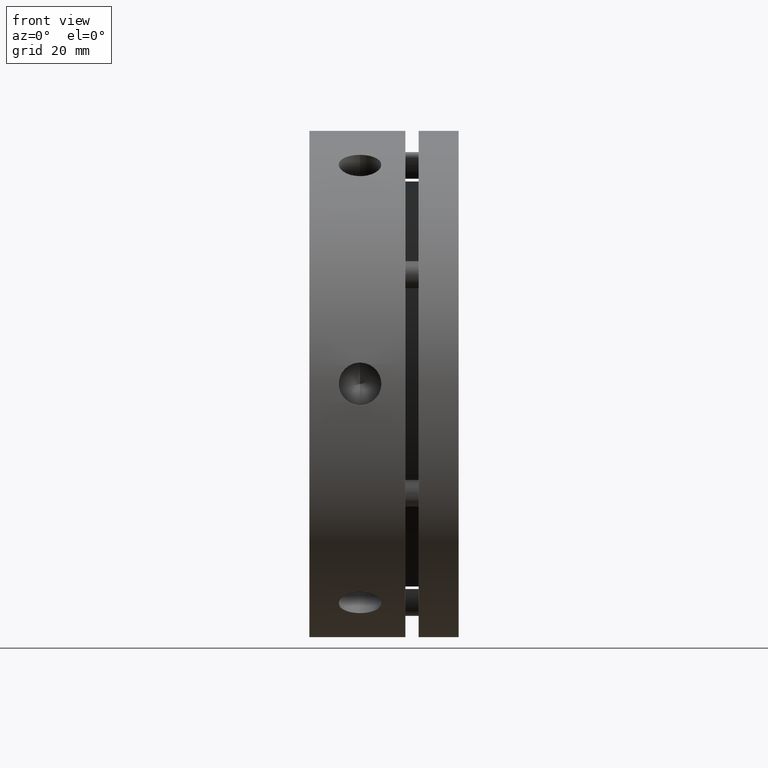
[diagram: clean part render]
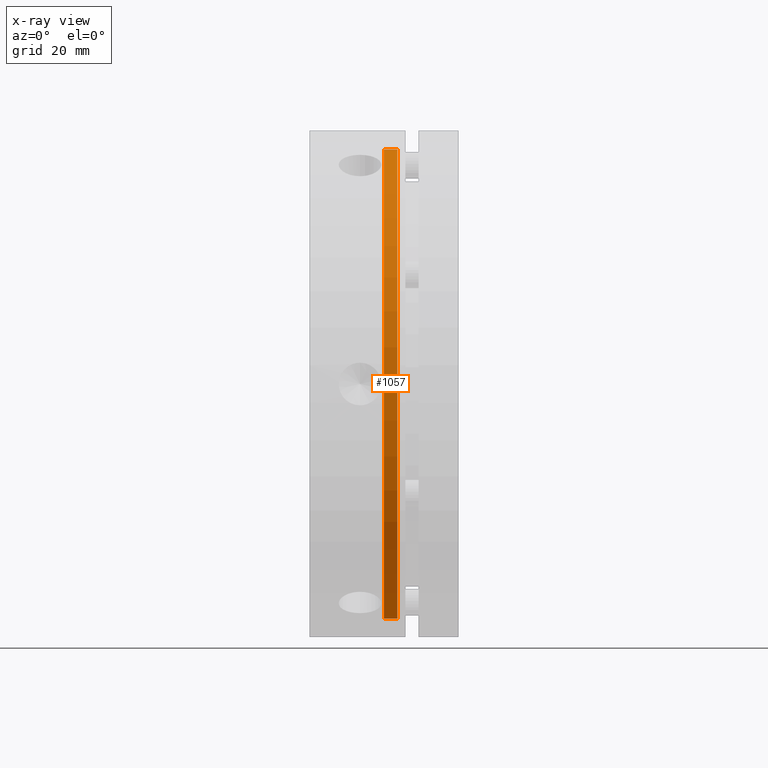
[diagram: x-ray — body ghosted, one internal face saturated and labeled with its STEP entity id]
A machine part, front view, then the same camera in x-ray: the body is ghosted and one INTERNAL B-rep face — a face not visible from any outside direction — is saturated and labeled: STEP entity #1057.
In plain terms, the highlighted cylindrical surface (partial cylindrical patch) has radius 44 mm, axis along (-1, 0, 0).
Its self-contained STEP definition (entity closure, byte-faithful):
#17 = EDGE_LOOP ( 'NONE', ( #1321, #1320, #1319, #1318 ) ) ;
#94 = VERTEX_POINT ( 'NONE', #1419 ) ;
#105 = VERTEX_POINT ( 'NONE', #1430 ) ;
#160 = VERTEX_POINT ( 'NONE', #1470 ) ;
#233 = VERTEX_POINT ( 'NONE', #1532 ) ;
#355 = AXIS2_PLACEMENT_3D ( 'NONE', #2145, #2146, #2147 ) ;
#522 = EDGE_CURVE ( 'NONE', #233, #94, #2979, .T. ) ;
#551 = EDGE_CURVE ( 'NONE', #160, #105, #3025, .T. ) ;
#583 = EDGE_CURVE ( 'NONE', #160, #94, #3070, .T. ) ;
#585 = EDGE_CURVE ( 'NONE', #105, #233, #3077, .T. ) ;
#814 = AXIS2_PLACEMENT_3D ( 'NONE', #2070, #2071, #2072 ) ;
#921 = AXIS2_PLACEMENT_3D ( 'NONE', #2596, #2594, #2592 ) ;
#1057 = ADVANCED_FACE ( 'NONE', ( #1697 ), #1706, .F. ) ;
#1318 = ORIENTED_EDGE ( 'NONE', *, *, #583, .F. ) ;
#1319 = ORIENTED_EDGE ( 'NONE', *, *, #522, .T. ) ;
#1320 = ORIENTED_EDGE ( 'NONE', *, *, #585, .T. ) ;
#1321 = ORIENTED_EDGE ( 'NONE', *, *, #551, .T. ) ;
#1419 = CARTESIAN_POINT ( 'NONE',  ( 14.00000000000000400, 0.0000000000000000000, 44.00000000000000000 ) ) ;
#1430 = CARTESIAN_POINT ( 'NONE',  ( 16.49999999999999600, 5.388445916248353600E-015, -44.00000000000000000 ) ) ;
#1470 = CARTESIAN_POINT ( 'NONE',  ( 16.49999999999999600, 0.0000000000000000000, 44.00000000000000000 ) ) ;
#1532 = CARTESIAN_POINT ( 'NONE',  ( 14.00000000000000400, 5.388445916248353600E-015, -44.00000000000000000 ) ) ;
#1697 = FACE_OUTER_BOUND ( 'NONE', #17, .T. ) ;
#1706 = CYLINDRICAL_SURFACE ( 'NONE', #921, 44.00000000000000000 ) ;
#2070 = CARTESIAN_POINT ( 'NONE',  ( 14.00000000000000400, 0.0000000000000000000, 0.0000000000000000000 ) ) ;
#2071 = DIRECTION ( 'NONE',  ( -1.000000000000000000, 0.0000000000000000000, 0.0000000000000000000 ) ) ;
#2072 = DIRECTION ( 'NONE',  ( 0.0000000000000000000, 0.0000000000000000000, 1.000000000000000000 ) ) ;
#2145 = CARTESIAN_POINT ( 'NONE',  ( 16.49999999999999600, 0.0000000000000000000, 0.0000000000000000000 ) ) ;
#2146 = DIRECTION ( 'NONE',  ( 1.000000000000000000, -0.0000000000000000000, -0.0000000000000000000 ) ) ;
#2147 = DIRECTION ( 'NONE',  ( 0.0000000000000000000, 0.0000000000000000000, 1.000000000000000000 ) ) ;
#2216 = CARTESIAN_POINT ( 'NONE',  ( 15.25000000000000000, 0.0000000000000000000, 44.00000000000000000 ) ) ;
#2222 = DIRECTION ( 'NONE',  ( -1.000000000000000000, 0.0000000000000000000, 0.0000000000000000000 ) ) ;
#2224 = DIRECTION ( 'NONE',  ( -1.000000000000000000, 0.0000000000000000000, 0.0000000000000000000 ) ) ;
#2225 = CARTESIAN_POINT ( 'NONE',  ( 15.25000000000000000, 5.388445916248353600E-015, -44.00000000000000000 ) ) ;
#2592 = DIRECTION ( 'NONE',  ( 0.0000000000000000000, 0.0000000000000000000, 1.000000000000000000 ) ) ;
#2594 = DIRECTION ( 'NONE',  ( -1.000000000000000000, 0.0000000000000000000, 0.0000000000000000000 ) ) ;
#2596 = CARTESIAN_POINT ( 'NONE',  ( 15.25000000000000000, 0.0000000000000000000, 0.0000000000000000000 ) ) ;
#2979 = CIRCLE ( 'NONE', #814, 44.00000000000000000 ) ;
#3025 = CIRCLE ( 'NONE', #355, 44.00000000000000000 ) ;
#3070 = LINE ( 'NONE', #2216, #3076 ) ;
#3076 = VECTOR ( 'NONE', #2224, 1000.000000000000000 ) ;
#3077 = LINE ( 'NONE', #2225, #3079 ) ;
#3079 = VECTOR ( 'NONE', #2222, 1000.000000000000000 ) ;